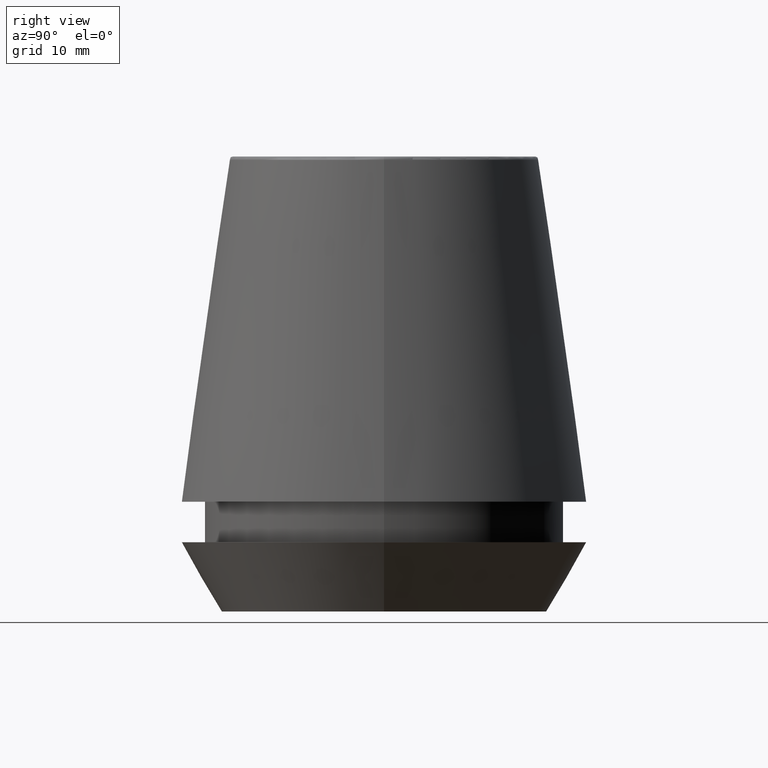
[diagram: clean part render]
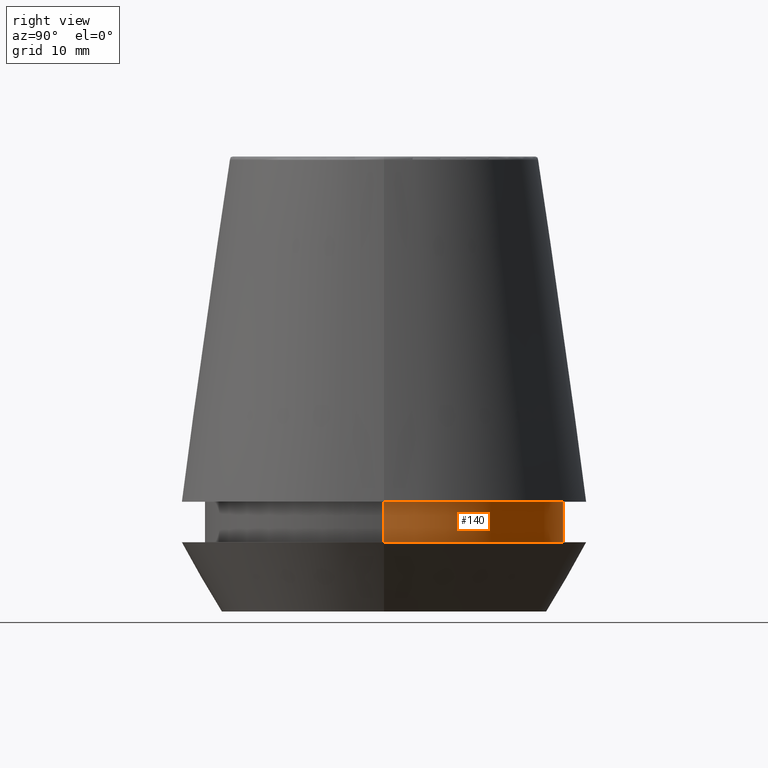
[diagram: same view with one face highlighted and labeled with its STEP entity id]
A machine part, right view. The second image highlights one B-rep face of the part: STEP entity #140.
In plain terms, the highlighted cylindrical surface (partial cylindrical patch) has radius 18.1 mm, axis along (-0, -0, 1).
Its self-contained STEP definition (entity closure, byte-faithful):
#2 = LINE ( 'NONE', #372, #235 ) ;
#5 = CARTESIAN_POINT ( 'NONE',  ( 18.10000000000000100, 0.0000000000000000000, 6.999999999999999100 ) ) ;
#11 = CIRCLE ( 'NONE', #359, 18.10000000000000100 ) ;
#18 = CARTESIAN_POINT ( 'NONE',  ( -18.10000000000000500, 2.216610706456710000E-015, 11.09999999999999800 ) ) ;
#30 = DIRECTION ( 'NONE',  ( 1.000000000000000000, 0.0000000000000000000, 0.0000000000000000000 ) ) ;
#35 = DIRECTION ( 'NONE',  ( -0.0000000000000000000, -0.0000000000000000000, 1.000000000000000000 ) ) ;
#47 = ORIENTED_EDGE ( 'NONE', *, *, #321, .F. ) ;
#65 = VERTEX_POINT ( 'NONE', #225 ) ;
#68 = DIRECTION ( 'NONE',  ( -0.0000000000000000000, -0.0000000000000000000, 1.000000000000000000 ) ) ;
#103 = DIRECTION ( 'NONE',  ( 1.000000000000000000, 0.0000000000000000000, 0.0000000000000000000 ) ) ;
#118 = DIRECTION ( 'NONE',  ( 1.000000000000000000, 0.0000000000000000000, 0.0000000000000000000 ) ) ;
#136 = CARTESIAN_POINT ( 'NONE',  ( 0.0000000000000000000, 0.0000000000000000000, 46.00000000000000000 ) ) ;
#140 = ADVANCED_FACE ( 'NONE', ( #294 ), #207, .T. ) ;
#144 = CIRCLE ( 'NONE', #380, 18.10000000000000500 ) ;
#167 = VERTEX_POINT ( 'NONE', #18 ) ;
#185 = EDGE_LOOP ( 'NONE', ( #319, #292, #366, #47 ) ) ;
#207 = CYLINDRICAL_SURFACE ( 'NONE', #300, 18.10000000000000500 ) ;
#225 = CARTESIAN_POINT ( 'NONE',  ( -18.10000000000000100, 2.216610706456709600E-015, 6.999999999999999100 ) ) ;
#235 = VECTOR ( 'NONE', #282, 1000.000000000000000 ) ;
#244 = LINE ( 'NONE', #281, #267 ) ;
#253 = DIRECTION ( 'NONE',  ( -0.0000000000000000000, -0.0000000000000000000, 1.000000000000000000 ) ) ;
#267 = VECTOR ( 'NONE', #68, 1000.000000000000000 ) ;
#281 = CARTESIAN_POINT ( 'NONE',  ( 18.10000000000000500, 0.0000000000000000000, 46.00000000000000000 ) ) ;
#282 = DIRECTION ( 'NONE',  ( -0.0000000000000000000, -0.0000000000000000000, 1.000000000000000000 ) ) ;
#284 = CARTESIAN_POINT ( 'NONE',  ( 0.0000000000000000000, 0.0000000000000000000, 11.09999999999999800 ) ) ;
#292 = ORIENTED_EDGE ( 'NONE', *, *, #370, .T. ) ;
#294 = FACE_OUTER_BOUND ( 'NONE', #185, .T. ) ;
#300 = AXIS2_PLACEMENT_3D ( 'NONE', #136, #317, #103 ) ;
#304 = VERTEX_POINT ( 'NONE', #5 ) ;
#308 = CARTESIAN_POINT ( 'NONE',  ( 0.0000000000000000000, 0.0000000000000000000, 6.999999999999999100 ) ) ;
#317 = DIRECTION ( 'NONE',  ( -0.0000000000000000000, -0.0000000000000000000, 1.000000000000000000 ) ) ;
#319 = ORIENTED_EDGE ( 'NONE', *, *, #376, .T. ) ;
#321 = EDGE_CURVE ( 'NONE', #304, #322, #244, .T. ) ;
#322 = VERTEX_POINT ( 'NONE', #338 ) ;
#338 = CARTESIAN_POINT ( 'NONE',  ( 18.10000000000000500, 0.0000000000000000000, 11.09999999999999800 ) ) ;
#359 = AXIS2_PLACEMENT_3D ( 'NONE', #308, #35, #118 ) ;
#366 = ORIENTED_EDGE ( 'NONE', *, *, #383, .F. ) ;
#370 = EDGE_CURVE ( 'NONE', #65, #167, #2, .T. ) ;
#372 = CARTESIAN_POINT ( 'NONE',  ( -18.10000000000000500, 2.216610706456710000E-015, 46.00000000000000000 ) ) ;
#376 = EDGE_CURVE ( 'NONE', #304, #65, #11, .T. ) ;
#380 = AXIS2_PLACEMENT_3D ( 'NONE', #284, #253, #30 ) ;
#383 = EDGE_CURVE ( 'NONE', #322, #167, #144, .T. ) ;